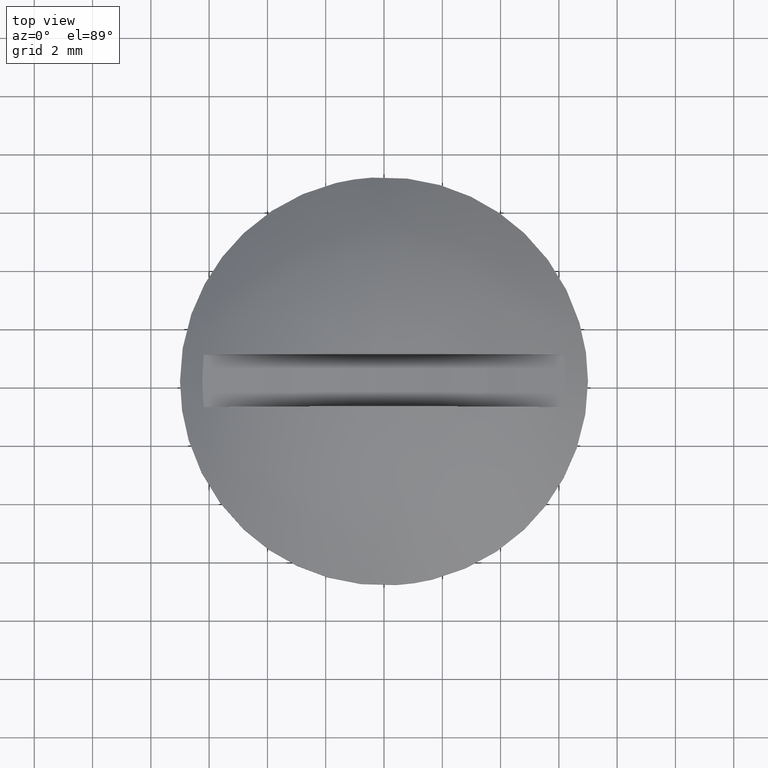
[diagram: clean part render]
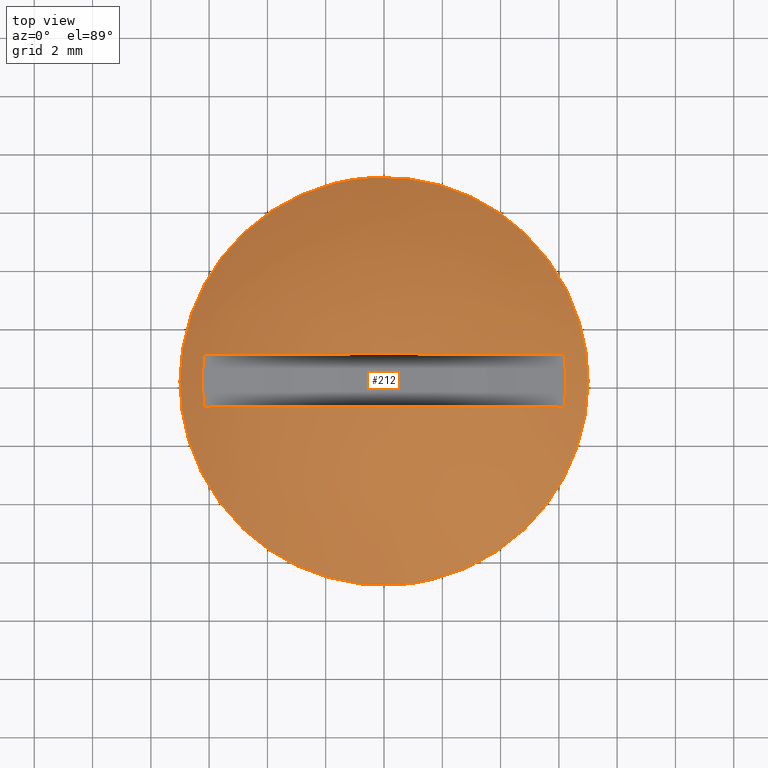
[diagram: same view with one face highlighted and labeled with its STEP entity id]
A machine part, top view. The second image highlights one B-rep face of the part: STEP entity #212.
In plain terms, the highlighted face is a freeform B-spline surface patch.
Its self-contained STEP definition (entity closure, byte-faithful):
#10=CARTESIAN_POINT('',(-6.188140263652630,-0.899993000000000,1.007241764877300));
#11=VERTEX_POINT('',#10);
#12=CARTESIAN_POINT('',(6.188140263652630,-0.899993000000000,1.007241764877300));
#13=VERTEX_POINT('',#12);
#27=CARTESIAN_POINT('',(6.188140263652638,-0.899993000000000,1.007241764877301));
#28=CARTESIAN_POINT('',(4.336809E-015,-0.899993000000000,4.832950620201165));
#29=CARTESIAN_POINT('',(-6.188140263652632,-0.899993000000000,1.007241764877305));
#37=(BOUNDED_CURVE()B_SPLINE_CURVE(2,(#27,#28,#29),.UNSPECIFIED.,.F.,.U.)CURVE()GEOMETRIC_REPRESENTATION_ITEM()QUASI_UNIFORM_CURVE()RATIONAL_B_SPLINE_CURVE((1.0,0.850575323171964,1.0))REPRESENTATION_ITEM(''));
#38=EDGE_CURVE('',#13,#11,#37,.T.);
#48=CARTESIAN_POINT('',(6.188138312163890,0.900010000000019,1.007241442786190));
#49=VERTEX_POINT('',#48);
#50=CARTESIAN_POINT('',(-6.188138312163890,0.900010000000019,1.007241442786190));
#51=VERTEX_POINT('',#50);
#52=CARTESIAN_POINT('',(6.188138312163890,0.900010000000019,1.007241442786190));
#53=CARTESIAN_POINT('',(3.469447E-015,0.900010000000000,4.832948008270046));
#54=CARTESIAN_POINT('',(-6.188138312163883,0.900010000000000,1.007241442786190));
#62=(BOUNDED_CURVE()B_SPLINE_CURVE(2,(#52,#53,#54),.UNSPECIFIED.,.F.,.U.)CURVE()GEOMETRIC_REPRESENTATION_ITEM()QUASI_UNIFORM_CURVE()RATIONAL_B_SPLINE_CURVE((1.0,0.850575389776752,1.0))REPRESENTATION_ITEM(''));
#63=EDGE_CURVE('',#49,#51,#62,.T.);
#96=CARTESIAN_POINT('',(-6.188140263652633,-0.899993000000000,1.007241764877306));
#97=CARTESIAN_POINT('',(-6.222578031573591,-0.599992461646414,1.012925682206770));
#98=CARTESIAN_POINT('',(-6.256576167310548,0.000008576230895,1.018609544404045));
#99=CARTESIAN_POINT('',(-6.222576732931840,0.600009538353602,1.012925466026022));
#100=CARTESIAN_POINT('',(-6.188138312163877,0.900010000000020,1.007241442786188));
#101=B_SPLINE_CURVE_WITH_KNOTS('',3,(#96,#97,#98,#99,#100),.UNSPECIFIED.,.F.,.U.,(4,1,4),(0.0,0.500000000000000,1.0),.UNSPECIFIED.);
#102=EDGE_CURVE('',#11,#51,#101,.T.);
#105=CARTESIAN_POINT('',(6.188138312163890,0.900010000000019,1.007241442786190));
#106=CARTESIAN_POINT('',(6.222576732931836,0.600009538353601,1.012925466026024));
#107=CARTESIAN_POINT('',(6.256576167337600,0.000008576230896,1.018609544398034));
#108=CARTESIAN_POINT('',(6.222578031573598,-0.599992461646414,1.012925682206767));
#109=CARTESIAN_POINT('',(6.188140263652638,-0.899993000000001,1.007241764877303));
#110=B_SPLINE_CURVE_WITH_KNOTS('',3,(#105,#106,#107,#108,#109),.UNSPECIFIED.,.F.,.U.,(4,1,4),(0.0,0.500000000000000,1.0),.UNSPECIFIED.);
#111=EDGE_CURVE('',#49,#13,#110,.T.);
#116=CARTESIAN_POINT('',(-6.763764852925427,-6.763613566578117,-2.088677180120013));
#117=CARTESIAN_POINT('',(-3.772557445157546,-7.544946127370699,0.073355971839852));
#118=CARTESIAN_POINT('',(3.772557635743900,-7.544946127370699,0.073355971839852));
#119=CARTESIAN_POINT('',(6.763765123854183,-6.763613495808883,-2.088677375946275));
#120=CARTESIAN_POINT('',(-7.545075899965885,-3.772453568946798,0.073248083667369));
#121=CARTESIAN_POINT('',(-4.265257953061463,-4.265162551268223,2.800007999999892));
#122=CARTESIAN_POINT('',(4.265258168538622,-4.265162551268223,2.800007999999892));
#123=CARTESIAN_POINT('',(7.545076193071388,-3.772453524915169,0.073247839986656));
#124=CARTESIAN_POINT('',(-7.545075899965885,3.772453360355832,0.073248083667375));
#125=CARTESIAN_POINT('',(-4.265257953061463,4.265162315433807,2.800007999999898));
#126=CARTESIAN_POINT('',(4.265258168538622,4.265162315433807,2.800007999999898));
#127=CARTESIAN_POINT('',(7.545076193071388,3.772453316324205,0.073247839986663));
#128=CARTESIAN_POINT('',(-6.763764930380601,6.763613270049842,-2.088676965797821));
#129=CARTESIAN_POINT('',(-3.772557493349568,7.544945806568503,0.073356238539141));
#130=CARTESIAN_POINT('',(3.772557683935925,7.544945806568503,0.073356238539141));
#131=CARTESIAN_POINT('',(6.763765201309353,6.763613199280605,-2.088677161624085));
#139=(BOUNDED_SURFACE()B_SPLINE_SURFACE(2,2,((#116,#120,#124,#128),(#117,#121,#125,#129),(#118,#122,#126,#130),(#119,#123,#127,#131)),.UNSPECIFIED.,.F.,.F.,.U.)B_SPLINE_SURFACE_WITH_KNOTS((3,1,3),(3,1,3),(0.933526461857557,8.819893458954930,16.706260854464769),(0.933702857649326,8.819893458954930,16.706083624207970),.UNSPECIFIED.)GEOMETRIC_REPRESENTATION_ITEM()RATIONAL_B_SPLINE_SURFACE(((1.261208231157438,1.130607036857177,1.130607036857177,1.261208216714727),(1.130601194300261,1.0,1.0,1.130601179857550),(1.130601194300261,1.0,1.0,1.130601179857550),(1.261208244353748,1.130607050053488,1.130607050053488,1.261208229911038)))REPRESENTATION_ITEM('')SURFACE());
#140=CARTESIAN_POINT('',(0.427336889335003,-6.986943765553370,0.500000000000000));
#141=VERTEX_POINT('',#140);
#142=CARTESIAN_POINT('',(-7.0,0.0,0.500000000000000));
#143=VERTEX_POINT('',#142);
#144=CARTESIAN_POINT('',(0.427336889335003,-6.986943765553371,0.500000000000000));
#145=CARTESIAN_POINT('',(0.213867895337626,-6.999999999999412,0.500000000000000));
#146=CARTESIAN_POINT('',(-3.738260E-014,-6.999999999999422,0.500000000000000));
#147=CARTESIAN_POINT('',(-7.000000000000017,-6.999999999999719,0.500000000000000));
#148=CARTESIAN_POINT('',(-7.0,0.0,0.500000000000000));
#156=(BOUNDED_CURVE()B_SPLINE_CURVE(2,(#144,#145,#146,#147,#148),.UNSPECIFIED.,.F.,.U.)B_SPLINE_CURVE_WITH_KNOTS((3,2,3),(0.739333033548280,0.750000000000000,1.0),.UNSPECIFIED.)CURVE()GEOMETRIC_REPRESENTATION_ITEM()RATIONAL_B_SPLINE_CURVE((0.976072194496250,0.987502871443923,1.0,0.707106781186547,1.0))REPRESENTATION_ITEM(''));
#157=EDGE_CURVE('',#141,#143,#156,.T.);
#158=ORIENTED_EDGE('',*,*,#157,.F.);
#159=CARTESIAN_POINT('',(7.0,0.0,0.500000000000000));
#160=VERTEX_POINT('',#159);
#161=CARTESIAN_POINT('',(7.0,0.0,0.500000000000000));
#162=CARTESIAN_POINT('',(6.999999999999981,-6.584945194704138,0.500000000000000));
#163=CARTESIAN_POINT('',(0.427336889335003,-6.986943765553371,0.500000000000000));
#171=(BOUNDED_CURVE()B_SPLINE_CURVE(2,(#161,#162,#163),.UNSPECIFIED.,.F.,.U.)B_SPLINE_CURVE_WITH_KNOTS((3,3),(0.500000000000000,0.739333033548280),.UNSPECIFIED.)CURVE()GEOMETRIC_REPRESENTATION_ITEM()RATIONAL_B_SPLINE_CURVE((1.0,0.719603909742625,0.976072194496250))REPRESENTATION_ITEM(''));
#172=EDGE_CURVE('',#160,#141,#171,.T.);
#173=ORIENTED_EDGE('',*,*,#172,.F.);
#174=CARTESIAN_POINT('',(-0.427336889335001,6.986943765553370,0.500000000000000));
#175=VERTEX_POINT('',#174);
#176=CARTESIAN_POINT('',(-0.427336889335001,6.986943765553370,0.500000000000000));
#177=CARTESIAN_POINT('',(-0.213867895337626,6.999999999999411,0.500000000000000));
#178=CARTESIAN_POINT('',(3.528185E-014,6.999999999999420,0.500000000000000));
#179=CARTESIAN_POINT('',(7.000000000000017,6.999999999999718,0.500000000000000));
#180=CARTESIAN_POINT('',(7.0,0.0,0.500000000000000));
#188=(BOUNDED_CURVE()B_SPLINE_CURVE(2,(#176,#177,#178,#179,#180),.UNSPECIFIED.,.F.,.U.)B_SPLINE_CURVE_WITH_KNOTS((3,2,3),(0.239333033548280,0.250000000000000,0.500000000000000),.UNSPECIFIED.)CURVE()GEOMETRIC_REPRESENTATION_ITEM()RATIONAL_B_SPLINE_CURVE((0.976072194496250,0.987502871443923,1.0,0.707106781186547,1.0))REPRESENTATION_ITEM(''));
#189=EDGE_CURVE('',#175,#160,#188,.T.);
#190=ORIENTED_EDGE('',*,*,#189,.F.);
#191=CARTESIAN_POINT('',(-7.0,0.0,0.500000000000000));
#192=CARTESIAN_POINT('',(-6.999999999999981,6.584945194704140,0.500000000000000));
#193=CARTESIAN_POINT('',(-0.427336889335001,6.986943765553370,0.500000000000000));
#201=(BOUNDED_CURVE()B_SPLINE_CURVE(2,(#191,#192,#193),.UNSPECIFIED.,.F.,.U.)B_SPLINE_CURVE_WITH_KNOTS((3,3),(0.0,0.239333033548280),.UNSPECIFIED.)CURVE()GEOMETRIC_REPRESENTATION_ITEM()RATIONAL_B_SPLINE_CURVE((1.0,0.719603909742625,0.976072194496250))REPRESENTATION_ITEM(''));
#202=EDGE_CURVE('',#143,#175,#201,.T.);
#203=ORIENTED_EDGE('',*,*,#202,.F.);
#204=EDGE_LOOP('',(#158,#173,#190,#203));
#205=FACE_OUTER_BOUND('',#204,.T.);
#206=ORIENTED_EDGE('',*,*,#63,.F.);
#207=ORIENTED_EDGE('',*,*,#111,.T.);
#208=ORIENTED_EDGE('',*,*,#38,.T.);
#209=ORIENTED_EDGE('',*,*,#102,.T.);
#210=EDGE_LOOP('',(#206,#207,#208,#209));
#211=FACE_BOUND('',#210,.T.);
#212=ADVANCED_FACE('',(#205,#211),#139,.T.);